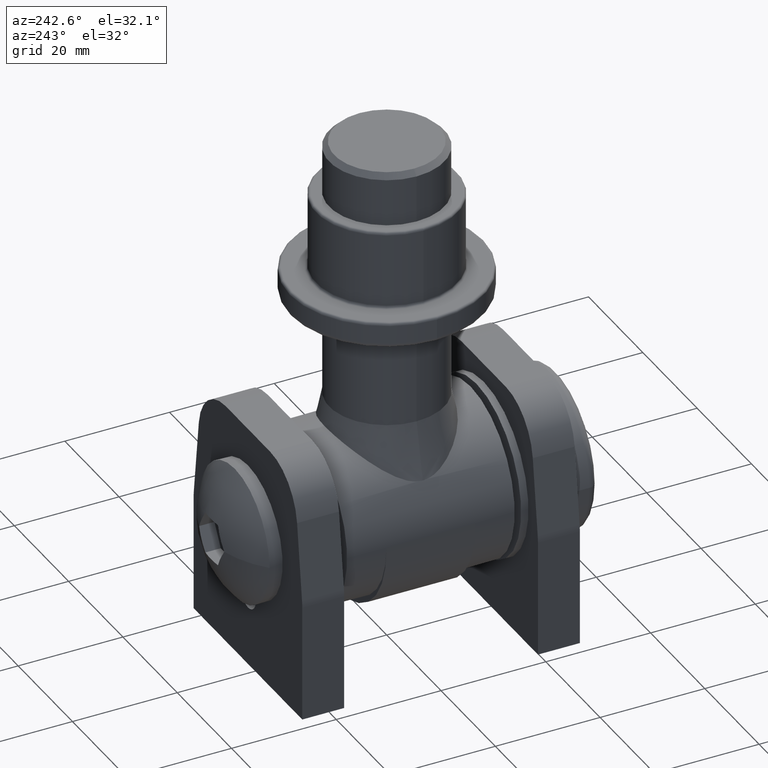
[diagram: clean part render]
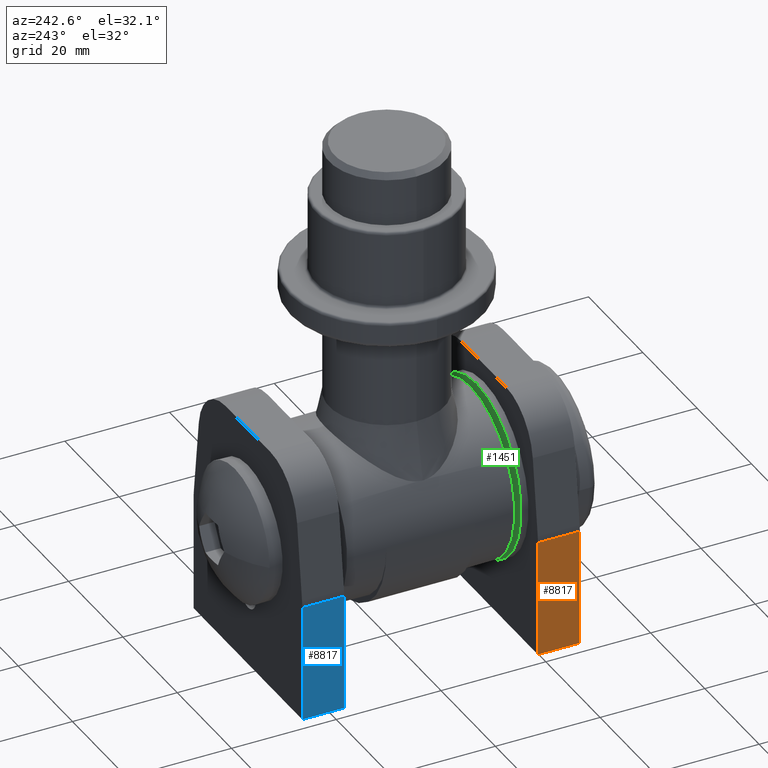
[diagram: same view with three faces highlighted in distinct colors, each labeled with its STEP entity id]
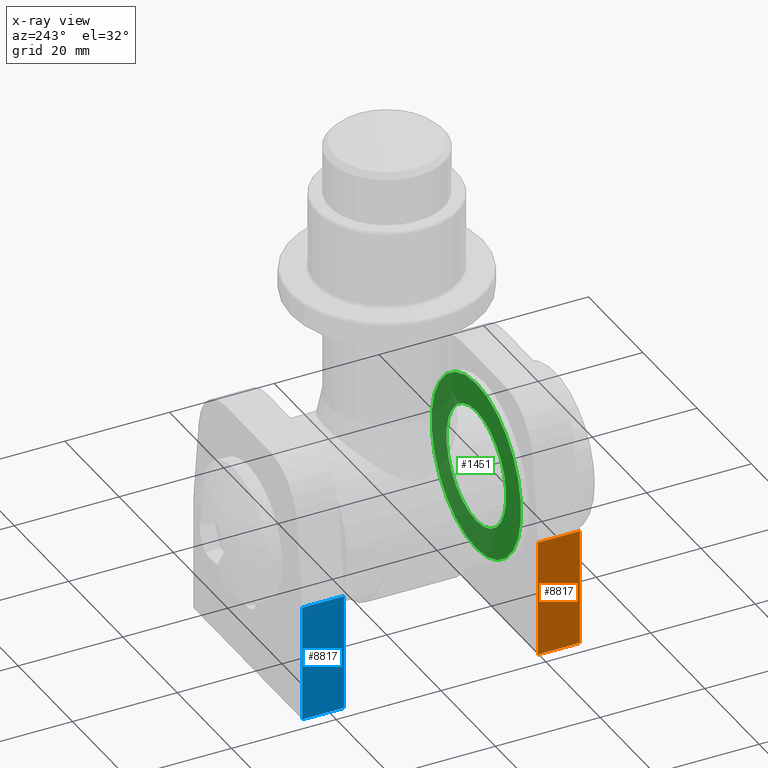
[diagram: x-ray of the same camera — body ghosted, the three highlighted faces saturated]
A machine part, auxiliary view with three faces highlighted in distinct colors.
The next image is the same camera in x-ray (body ghosted, the three faces saturated) — at least one of them is partly hidden behind the body in this view.
Their STEP definitions:

[orange] entity #8817 — the highlighted planar face has unit normal (1, 0, 0).
#106 = VERTEX_POINT ( 'NONE', #11048 ) ;
#195 = CARTESIAN_POINT ( 'NONE',  ( -20.00000000000000000, 4.000000000000000000, -0.5000000000000038900 ) ) ;
#623 = VERTEX_POINT ( 'NONE', #15334 ) ;
#786 = DIRECTION ( 'NONE',  ( -0.0000000000000000000, -1.000000000000000000, -0.0000000000000000000 ) ) ;
#841 = AXIS2_PLACEMENT_3D ( 'NONE', #195, #6568, #3972 ) ;
#1685 = FACE_OUTER_BOUND ( 'NONE', #8791, .T. ) ;
#1918 = CARTESIAN_POINT ( 'NONE',  ( -20.00000000000000000, 4.000000000000000000, -23.50000000000000400 ) ) ;
#3148 = EDGE_CURVE ( 'NONE', #10929, #106, #12765, .T. ) ;
#3972 = DIRECTION ( 'NONE',  ( 0.0000000000000000000, 0.0000000000000000000, -1.000000000000000000 ) ) ;
#4056 = DIRECTION ( 'NONE',  ( 0.0000000000000000000, 1.000000000000000000, -0.0000000000000000000 ) ) ;
#5308 = DIRECTION ( 'NONE',  ( -0.0000000000000000000, -0.0000000000000000000, 1.000000000000000000 ) ) ;
#6098 = VECTOR ( 'NONE', #15039, 1000.000000000000000 ) ;
#6568 = DIRECTION ( 'NONE',  ( 1.000000000000000000, -0.0000000000000000000, 0.0000000000000000000 ) ) ;
#7568 = VECTOR ( 'NONE', #5308, 1000.000000000000000 ) ;
#8791 = EDGE_LOOP ( 'NONE', ( #9165, #10348, #14931, #14672 ) ) ;
#8817 = ADVANCED_FACE ( 'NONE', ( #1685 ), #11296, .F. ) ;
#9109 = LINE ( 'NONE', #11260, #6098 ) ;
#9165 = ORIENTED_EDGE ( 'NONE', *, *, #12880, .T. ) ;
#9528 = VERTEX_POINT ( 'NONE', #15158 ) ;
#10238 = LINE ( 'NONE', #1918, #12093 ) ;
#10348 = ORIENTED_EDGE ( 'NONE', *, *, #3148, .T. ) ;
#10498 = EDGE_CURVE ( 'NONE', #9528, #106, #9109, .T. ) ;
#10929 = VERTEX_POINT ( 'NONE', #11026 ) ;
#11026 = CARTESIAN_POINT ( 'NONE',  ( -20.00000000000000000, -4.000000000000000000, -1.122577482985502000 ) ) ;
#11048 = CARTESIAN_POINT ( 'NONE',  ( -20.00000000000000000, 4.000000000000000000, -1.122577482985502000 ) ) ;
#11260 = CARTESIAN_POINT ( 'NONE',  ( -20.00000000000000000, 4.000000000000000000, -0.5000000000000038900 ) ) ;
#11296 = PLANE ( 'NONE',  #841 ) ;
#11320 = CARTESIAN_POINT ( 'NONE',  ( -20.00000000000000000, -4.000000000000000000, -0.5000000000000038900 ) ) ;
#11380 = CARTESIAN_POINT ( 'NONE',  ( -20.00000000000000000, 4.000000000000000000, -1.122577482985502000 ) ) ;
#11912 = EDGE_CURVE ( 'NONE', #9528, #623, #10238, .T. ) ;
#12093 = VECTOR ( 'NONE', #786, 1000.000000000000000 ) ;
#12765 = LINE ( 'NONE', #11380, #14099 ) ;
#12880 = EDGE_CURVE ( 'NONE', #623, #10929, #13605, .T. ) ;
#13605 = LINE ( 'NONE', #11320, #7568 ) ;
#14099 = VECTOR ( 'NONE', #4056, 1000.000000000000000 ) ;
#14672 = ORIENTED_EDGE ( 'NONE', *, *, #11912, .T. ) ;
#14931 = ORIENTED_EDGE ( 'NONE', *, *, #10498, .F. ) ;
#15039 = DIRECTION ( 'NONE',  ( -0.0000000000000000000, -0.0000000000000000000, 1.000000000000000000 ) ) ;
#15158 = CARTESIAN_POINT ( 'NONE',  ( -20.00000000000000000, 4.000000000000000000, -23.50000000000000400 ) ) ;
#15334 = CARTESIAN_POINT ( 'NONE',  ( -20.00000000000000000, -4.000000000000000000, -23.50000000000000400 ) ) ;

[blue] entity #8817 — the highlighted planar face has unit normal (1, 0, 0).
#106 = VERTEX_POINT ( 'NONE', #11048 ) ;
#195 = CARTESIAN_POINT ( 'NONE',  ( -20.00000000000000000, 4.000000000000000000, -0.5000000000000038900 ) ) ;
#623 = VERTEX_POINT ( 'NONE', #15334 ) ;
#786 = DIRECTION ( 'NONE',  ( -0.0000000000000000000, -1.000000000000000000, -0.0000000000000000000 ) ) ;
#841 = AXIS2_PLACEMENT_3D ( 'NONE', #195, #6568, #3972 ) ;
#1685 = FACE_OUTER_BOUND ( 'NONE', #8791, .T. ) ;
#1918 = CARTESIAN_POINT ( 'NONE',  ( -20.00000000000000000, 4.000000000000000000, -23.50000000000000400 ) ) ;
#3148 = EDGE_CURVE ( 'NONE', #10929, #106, #12765, .T. ) ;
#3972 = DIRECTION ( 'NONE',  ( 0.0000000000000000000, 0.0000000000000000000, -1.000000000000000000 ) ) ;
#4056 = DIRECTION ( 'NONE',  ( 0.0000000000000000000, 1.000000000000000000, -0.0000000000000000000 ) ) ;
#5308 = DIRECTION ( 'NONE',  ( -0.0000000000000000000, -0.0000000000000000000, 1.000000000000000000 ) ) ;
#6098 = VECTOR ( 'NONE', #15039, 1000.000000000000000 ) ;
#6568 = DIRECTION ( 'NONE',  ( 1.000000000000000000, -0.0000000000000000000, 0.0000000000000000000 ) ) ;
#7568 = VECTOR ( 'NONE', #5308, 1000.000000000000000 ) ;
#8791 = EDGE_LOOP ( 'NONE', ( #9165, #10348, #14931, #14672 ) ) ;
#8817 = ADVANCED_FACE ( 'NONE', ( #1685 ), #11296, .F. ) ;
#9109 = LINE ( 'NONE', #11260, #6098 ) ;
#9165 = ORIENTED_EDGE ( 'NONE', *, *, #12880, .T. ) ;
#9528 = VERTEX_POINT ( 'NONE', #15158 ) ;
#10238 = LINE ( 'NONE', #1918, #12093 ) ;
#10348 = ORIENTED_EDGE ( 'NONE', *, *, #3148, .T. ) ;
#10498 = EDGE_CURVE ( 'NONE', #9528, #106, #9109, .T. ) ;
#10929 = VERTEX_POINT ( 'NONE', #11026 ) ;
#11026 = CARTESIAN_POINT ( 'NONE',  ( -20.00000000000000000, -4.000000000000000000, -1.122577482985502000 ) ) ;
#11048 = CARTESIAN_POINT ( 'NONE',  ( -20.00000000000000000, 4.000000000000000000, -1.122577482985502000 ) ) ;
#11260 = CARTESIAN_POINT ( 'NONE',  ( -20.00000000000000000, 4.000000000000000000, -0.5000000000000038900 ) ) ;
#11296 = PLANE ( 'NONE',  #841 ) ;
#11320 = CARTESIAN_POINT ( 'NONE',  ( -20.00000000000000000, -4.000000000000000000, -0.5000000000000038900 ) ) ;
#11380 = CARTESIAN_POINT ( 'NONE',  ( -20.00000000000000000, 4.000000000000000000, -1.122577482985502000 ) ) ;
#11912 = EDGE_CURVE ( 'NONE', #9528, #623, #10238, .T. ) ;
#12093 = VECTOR ( 'NONE', #786, 1000.000000000000000 ) ;
#12765 = LINE ( 'NONE', #11380, #14099 ) ;
#12880 = EDGE_CURVE ( 'NONE', #623, #10929, #13605, .T. ) ;
#13605 = LINE ( 'NONE', #11320, #7568 ) ;
#14099 = VECTOR ( 'NONE', #4056, 1000.000000000000000 ) ;
#14672 = ORIENTED_EDGE ( 'NONE', *, *, #11912, .T. ) ;
#14931 = ORIENTED_EDGE ( 'NONE', *, *, #10498, .F. ) ;
#15039 = DIRECTION ( 'NONE',  ( -0.0000000000000000000, -0.0000000000000000000, 1.000000000000000000 ) ) ;
#15158 = CARTESIAN_POINT ( 'NONE',  ( -20.00000000000000000, 4.000000000000000000, -23.50000000000000400 ) ) ;
#15334 = CARTESIAN_POINT ( 'NONE',  ( -20.00000000000000000, -4.000000000000000000, -23.50000000000000400 ) ) ;

[green] entity #1451 — the highlighted planar face has unit normal (0, 1, 0).
#116 = ORIENTED_EDGE ( 'NONE', *, *, #15593, .F. ) ;
#136 = ORIENTED_EDGE ( 'NONE', *, *, #4239, .T. ) ;
#187 = VERTEX_POINT ( 'NONE', #14533 ) ;
#932 = DIRECTION ( 'NONE',  ( 0.0000000000000000000, 1.000000000000000000, 0.0000000000000000000 ) ) ;
#1016 = DIRECTION ( 'NONE',  ( 0.0000000000000000000, 0.0000000000000000000, 1.000000000000000000 ) ) ;
#1451 = ADVANCED_FACE ( 'NONE', ( #7159, #10000 ), #12797, .T. ) ;
#1651 = CIRCLE ( 'NONE', #7803, 16.50000000000000000 ) ;
#2111 = AXIS2_PLACEMENT_3D ( 'NONE', #8154, #4527, #10556 ) ;
#2272 = AXIS2_PLACEMENT_3D ( 'NONE', #4941, #10966, #7351 ) ;
#2317 = VERTEX_POINT ( 'NONE', #3766 ) ;
#3766 = CARTESIAN_POINT ( 'NONE',  ( 1.347111479062088400E-015, 1.399999999999998600, 11.00000000000000000 ) ) ;
#3886 = VERTEX_POINT ( 'NONE', #15395 ) ;
#3975 = EDGE_CURVE ( 'NONE', #2317, #12571, #9546, .T. ) ;
#4239 = EDGE_CURVE ( 'NONE', #187, #3886, #1651, .T. ) ;
#4527 = DIRECTION ( 'NONE',  ( 0.0000000000000000000, 1.000000000000000000, 0.0000000000000000000 ) ) ;
#4941 = CARTESIAN_POINT ( 'NONE',  ( 0.0000000000000000000, 1.399999999999998600, 0.0000000000000000000 ) ) ;
#5796 = ORIENTED_EDGE ( 'NONE', *, *, #3975, .F. ) ;
#7008 = AXIS2_PLACEMENT_3D ( 'NONE', #8294, #932, #9525 ) ;
#7159 = FACE_OUTER_BOUND ( 'NONE', #15666, .T. ) ;
#7351 = DIRECTION ( 'NONE',  ( 0.0000000000000000000, 0.0000000000000000000, 1.000000000000000000 ) ) ;
#7803 = AXIS2_PLACEMENT_3D ( 'NONE', #8272, #15640, #1016 ) ;
#8098 = DIRECTION ( 'NONE',  ( 0.0000000000000000000, -0.0000000000000000000, 1.000000000000000000 ) ) ;
#8154 = CARTESIAN_POINT ( 'NONE',  ( 0.0000000000000000000, 1.399999999999998600, 0.0000000000000000000 ) ) ;
#8272 = CARTESIAN_POINT ( 'NONE',  ( 0.0000000000000000000, 1.399999999999998600, 0.0000000000000000000 ) ) ;
#8294 = CARTESIAN_POINT ( 'NONE',  ( 0.0000000000000000000, 1.399999999999998600, 0.0000000000000000000 ) ) ;
#9029 = EDGE_CURVE ( 'NONE', #3886, #187, #10311, .T. ) ;
#9525 = DIRECTION ( 'NONE',  ( 0.0000000000000000000, 0.0000000000000000000, 1.000000000000000000 ) ) ;
#9546 = CIRCLE ( 'NONE', #7008, 11.00000000000000000 ) ;
#10000 = FACE_BOUND ( 'NONE', #11486, .T. ) ;
#10311 = CIRCLE ( 'NONE', #2272, 16.50000000000000000 ) ;
#10556 = DIRECTION ( 'NONE',  ( 0.0000000000000000000, 0.0000000000000000000, 1.000000000000000000 ) ) ;
#10966 = DIRECTION ( 'NONE',  ( 0.0000000000000000000, 1.000000000000000000, 0.0000000000000000000 ) ) ;
#11486 = EDGE_LOOP ( 'NONE', ( #116, #5796 ) ) ;
#11658 = CARTESIAN_POINT ( 'NONE',  ( 0.0000000000000000000, 1.399999999999998600, 0.0000000000000000000 ) ) ;
#12372 = ORIENTED_EDGE ( 'NONE', *, *, #9029, .T. ) ;
#12571 = VERTEX_POINT ( 'NONE', #13295 ) ;
#12797 = PLANE ( 'NONE',  #12949 ) ;
#12949 = AXIS2_PLACEMENT_3D ( 'NONE', #11658, #14228, #8098 ) ;
#13295 = CARTESIAN_POINT ( 'NONE',  ( 0.0000000000000000000, 1.399999999999998600, -11.00000000000000000 ) ) ;
#13544 = CIRCLE ( 'NONE', #2111, 11.00000000000000000 ) ;
#14228 = DIRECTION ( 'NONE',  ( 0.0000000000000000000, 1.000000000000000000, 0.0000000000000000000 ) ) ;
#14533 = CARTESIAN_POINT ( 'NONE',  ( 0.0000000000000000000, 1.399999999999998600, -16.50000000000000000 ) ) ;
#15395 = CARTESIAN_POINT ( 'NONE',  ( 2.020667218593133100E-015, 1.399999999999998600, 16.50000000000000000 ) ) ;
#15593 = EDGE_CURVE ( 'NONE', #12571, #2317, #13544, .T. ) ;
#15640 = DIRECTION ( 'NONE',  ( 0.0000000000000000000, 1.000000000000000000, 0.0000000000000000000 ) ) ;
#15666 = EDGE_LOOP ( 'NONE', ( #136, #12372 ) ) ;